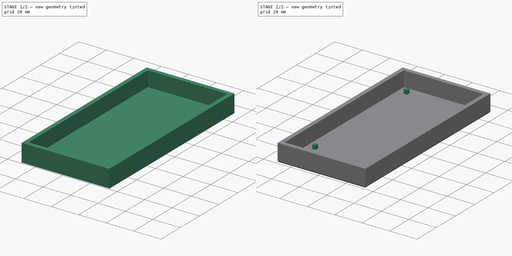
[diagram: build sequence overview — one tinted view per stage of 2, left to right]
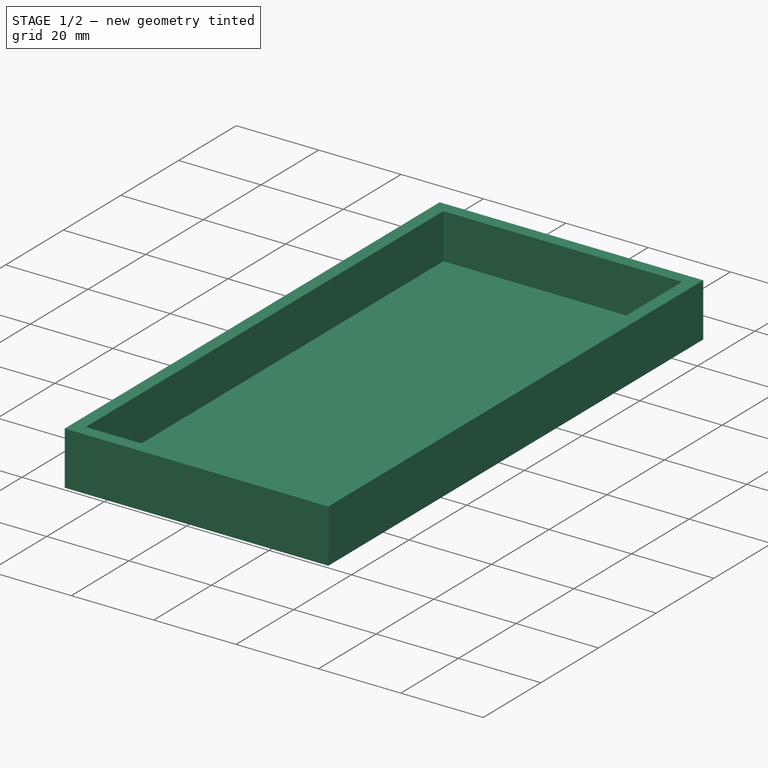
[diagram: stage 1 of 2 — iso view after this stage's code; geometry added in this stage tinted green]
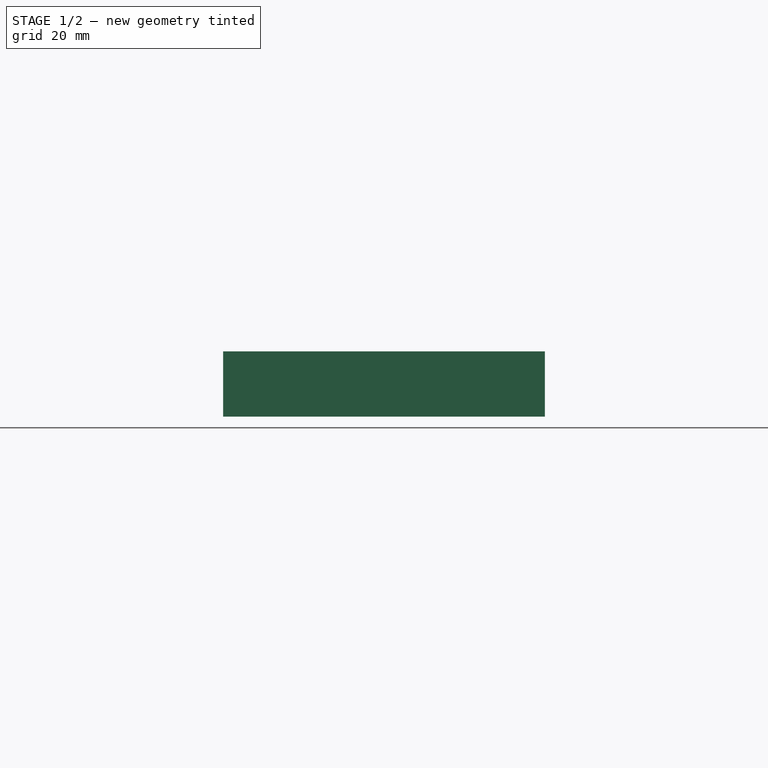
[diagram: stage 1 of 2 — front view after this stage's code; geometry added in this stage tinted green]
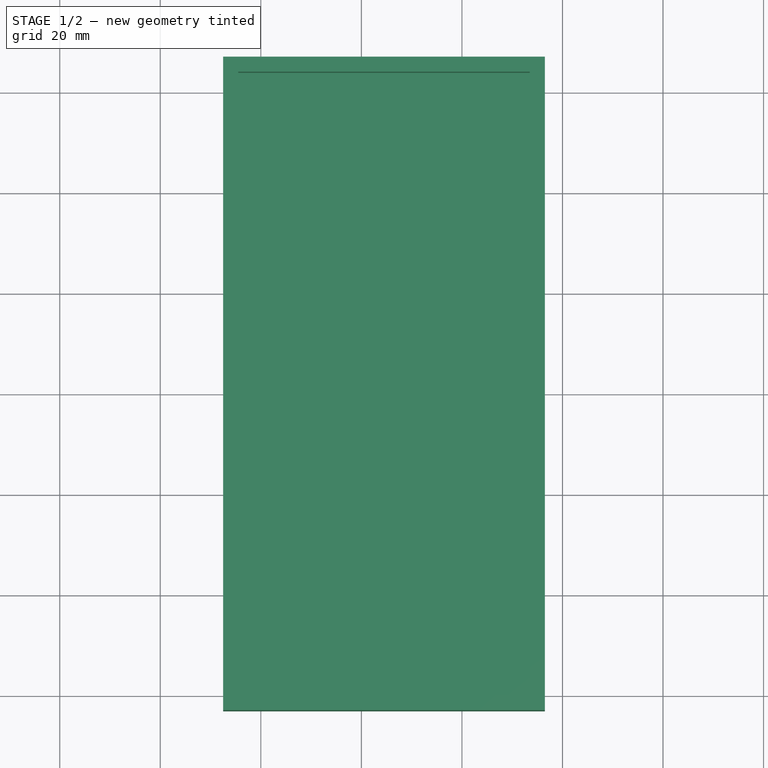
[diagram: stage 1 of 2 — top view after this stage's code; geometry added in this stage tinted green]
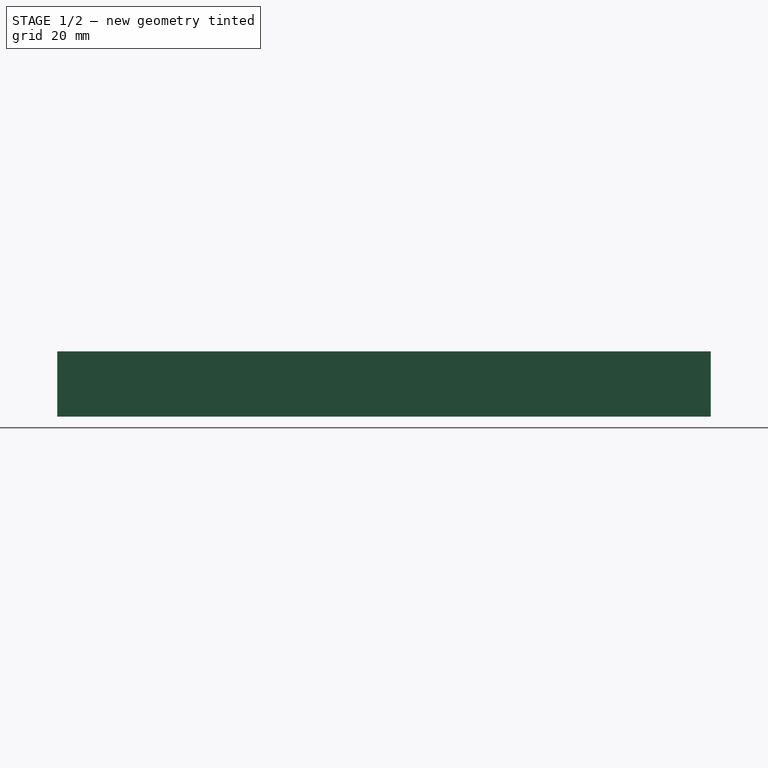
[diagram: stage 1 of 2 — right view after this stage's code; geometry added in this stage tinted green]
FCSTD DOCUMENT  (FreeCAD 0.16R6707 (Git))
Label: rq_optskin01_mold_b
License: All rights reserved
LicenseURL: http://en.wikipedia.org/wiki/All_rights_reserved
objects: Sketcher::SketchObject×4, PartDesign::Pad×2, PartDesign::Pocket×1, Part::Fillet×1
note: 11 computed .brp shape members not serialized (recipe doc carries the construction recipe); baked Part::Feature solids carry a one-line shape summary decoded from their .brp

FEATURE [Sketcher::SketchObject] Sketch001
  sketch-geometry (8):
    g0: LineSegment StartX=-21.5 StartY=81 StartZ=0 EndX=30.5 EndY=81 EndZ=0
    g1: LineSegment StartX=30.5 StartY=81 StartZ=0 EndX=30.5 EndY=-21 EndZ=0
    g2: LineSegment StartX=30.5 StartY=-21 StartZ=0 EndX=-21.5 EndY=-21 EndZ=0
    g3: LineSegment StartX=-21.5 StartY=-21 StartZ=0 EndX=-21.5 EndY=81 EndZ=0
    g4: LineSegment StartX=-18.5 StartY=12 StartZ=0 EndX=27.5 EndY=12 EndZ=0
    g5: LineSegment StartX=27.5 StartY=12 StartZ=0 EndX=27.5 EndY=56 EndZ=0
    g6: LineSegment StartX=27.5 StartY=56 StartZ=0 EndX=-18.5 EndY=56 EndZ=0
    g7: LineSegment StartX=-18.5 StartY=56 StartZ=0 EndX=-18.5 EndY=12 EndZ=0
  constraints (24):
    c: Coincident(g0,g1)
    c: Coincident(g1,g2)
    c: Coincident(g2,g3)
    c: Coincident(g3,g0)
    c: Horizontal(g0)
    c: Horizontal(g2)
    c: Vertical(g1)
    c: Vertical(g3)
    c: DistanceX(g0,g0) = 52
    c: DistanceX(g2,g-1) = 21.5
    c: DistanceY(g2,g-1) = 21
    c: Coincident(g4,g5)
    c: Coincident(g5,g6)
    c: Coincident(g6,g7)
    c: Coincident(g7,g4)
    c: Horizontal(g4)
    c: Horizontal(g6)
    c: Vertical(g5)
    c: Vertical(g7)
    c: DistanceX(g2,g4) = 3
    c: DistanceX(g4,g1) = 3
    c: DistanceY(g-1,g4) = 12
    c: DistanceY(g4,g5) = 44
    c: DistanceY(g6,g0) = 25
FEATURE [Sketcher::SketchObject] Sketch
  expr: Constraints[11] = 27 + 16
  sketch-geometry (4):
    g0: LineSegment StartX=-27.5 StartY=87 StartZ=0 EndX=36.5 EndY=87 EndZ=0
    g1: LineSegment StartX=36.5 StartY=87 StartZ=0 EndX=36.5 EndY=-43 EndZ=0
    g2: LineSegment StartX=36.5 StartY=-43 StartZ=0 EndX=-27.5 EndY=-43 EndZ=0
    g3: LineSegment StartX=-27.5 StartY=-43 StartZ=0 EndX=-27.5 EndY=87 EndZ=0
  constraints (12):
    c: Coincident(g0,g1)
    c: Coincident(g1,g2)
    c: Coincident(g2,g3)
    c: Coincident(g3,g0)
    c: Horizontal(g0)
    c: Horizontal(g2)
    c: Vertical(g1)
    c: Vertical(g3)
    c: DistanceX(g0,g-1) = 27.5
    c: DistanceX(g0,g0) = 64
    c: DistanceY(g-1,g0) = 87
    c: DistanceY(g2,g-1) = 43
FEATURE [PartDesign::Pad] Pad
  Length = 13
  Length2 = 100
  Sketch = -> Sketch
  Type = 0
FEATURE [Sketcher::SketchObject] Sketch002
  ExternalGeometry = -> [Pad]
  Placement = pos=(0,0,13) rot=(0,0,1;0rad)
  Support = -> Pad [Face6]
  sketch-geometry (4):
    g0: LineSegment StartX=-24.5 StartY=84 StartZ=0 EndX=33.5 EndY=84 EndZ=0
    g1: LineSegment StartX=33.5 StartY=84 StartZ=0 EndX=33.5 EndY=-40 EndZ=0
    g2: LineSegment StartX=33.5 StartY=-40 StartZ=0 EndX=-24.5 EndY=-40 EndZ=0
    g3: LineSegment StartX=-24.5 StartY=-40 StartZ=0 EndX=-24.5 EndY=84 EndZ=0
  constraints (12):
    c: Coincident(g0,g1)
    c: Coincident(g1,g2)
    c: Coincident(g2,g3)
    c: Coincident(g3,g0)
    c: Horizontal(g0)
    c: Horizontal(g2)
    c: Vertical(g1)
    c: Vertical(g3)
    c: DistanceX(g-3,g0) = 3
    c: DistanceY(g0,g-3) = 3
    c: DistanceX(g1,g-4) = 3
    c: DistanceY(g-4,g1) = 3
FEATURE [PartDesign::Pocket] Pocket
  Length = 11
  Sketch = -> Sketch002
  Type = 0
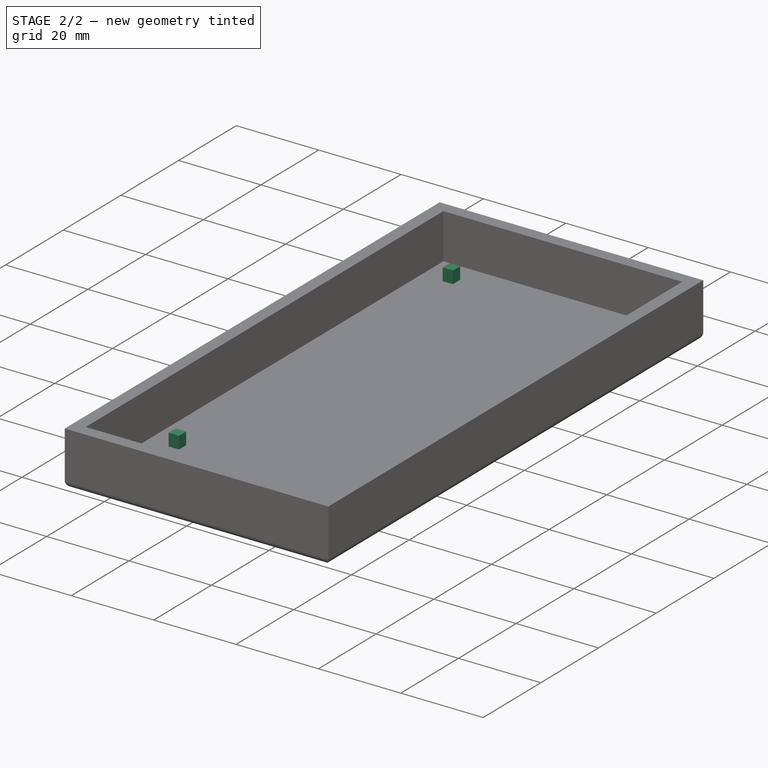
[diagram: stage 2 of 2 — iso view after this stage's code; geometry added in this stage tinted green]
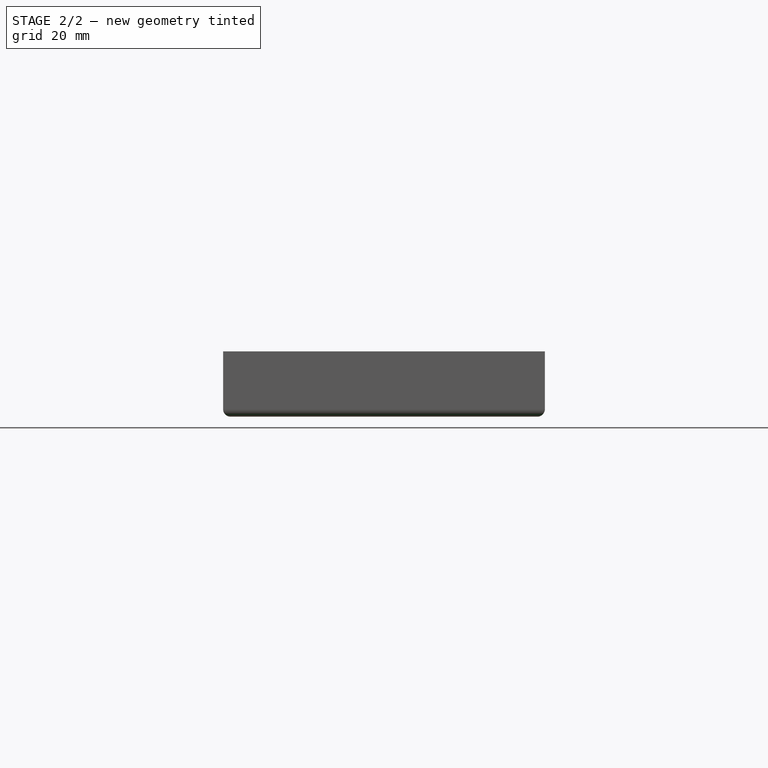
[diagram: stage 2 of 2 — front view after this stage's code; geometry added in this stage tinted green]
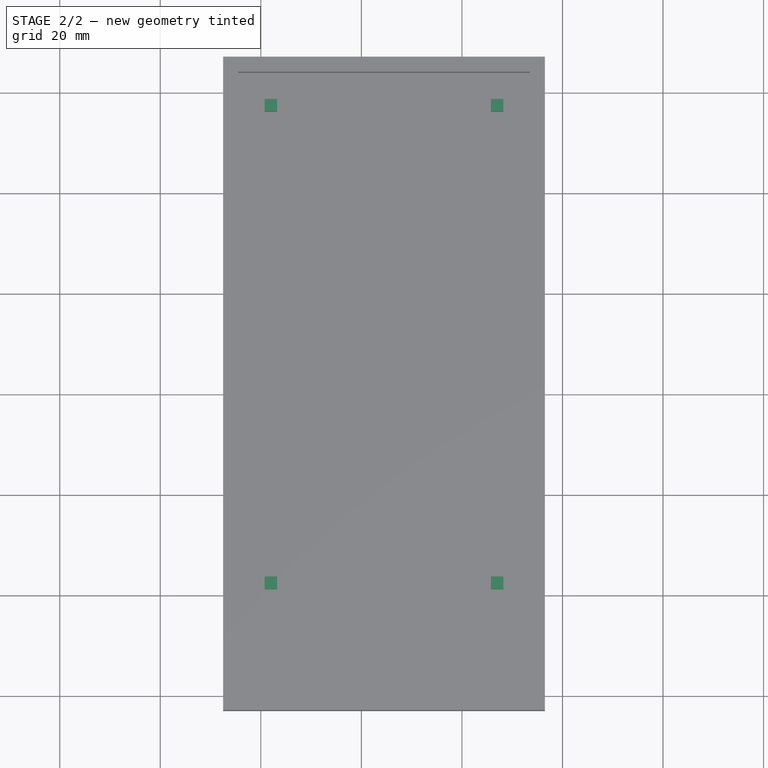
[diagram: stage 2 of 2 — top view after this stage's code; geometry added in this stage tinted green]
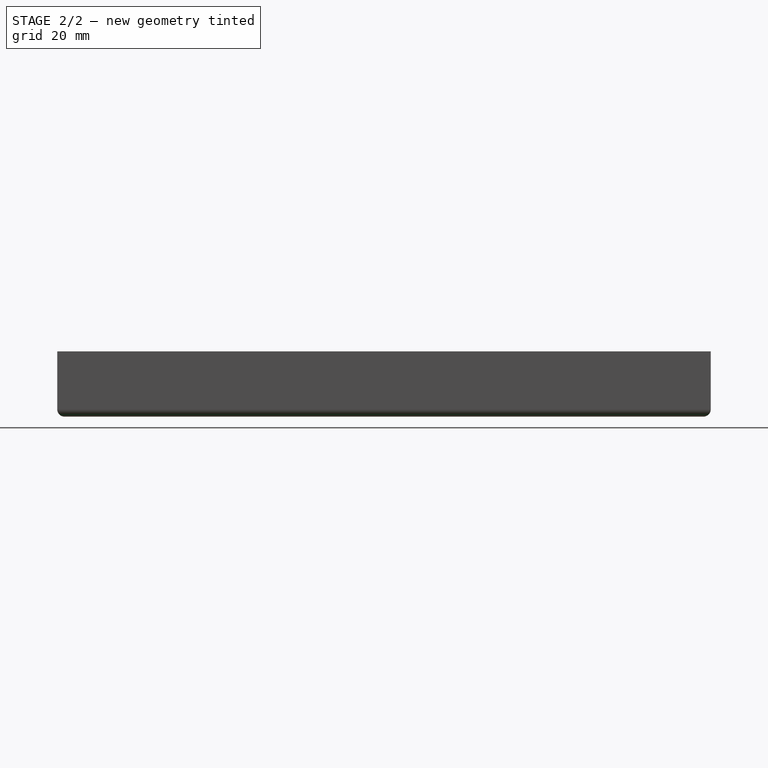
[diagram: stage 2 of 2 — right view after this stage's code; geometry added in this stage tinted green]
FEATURE [Sketcher::SketchObject] Sketch007
  ExternalGeometry = -> [Pocket]
  Placement = pos=(0,0,2) rot=(0,0,1;0rad)
  Support = -> Pocket [Face11]
  sketch-geometry (16):
    g0: LineSegment StartX=-19.25 StartY=78.75 StartZ=0 EndX=-16.75 EndY=78.75 EndZ=0
    g1: LineSegment StartX=-16.75 StartY=78.75 StartZ=0 EndX=-16.75 EndY=76.25 EndZ=0
    g2: LineSegment StartX=-16.75 StartY=76.25 StartZ=0 EndX=-19.25 EndY=76.25 EndZ=0
    g3: LineSegment StartX=-19.25 StartY=76.25 StartZ=0 EndX=-19.25 EndY=78.75 EndZ=0
    g4: LineSegment StartX=25.75 StartY=78.75 StartZ=0 EndX=28.25 EndY=78.75 EndZ=0
    g5: LineSegment StartX=28.25 StartY=78.75 StartZ=0 EndX=28.25 EndY=76.25 EndZ=0
    g6: LineSegment StartX=28.25 StartY=76.25 StartZ=0 EndX=25.75 EndY=76.25 EndZ=0
    g7: LineSegment StartX=25.75 StartY=76.25 StartZ=0 EndX=25.75 EndY=78.75 EndZ=0
    g8: LineSegment StartX=-19.25 StartY=-16.25 StartZ=0 EndX=-16.75 EndY=-16.25 EndZ=0
    g9: LineSegment StartX=-16.75 StartY=-16.25 StartZ=0 EndX=-16.75 EndY=-18.75 EndZ=0
    g10: LineSegment StartX=-16.75 StartY=-18.75 StartZ=0 EndX=-19.25 EndY=-18.75 EndZ=0
    g11: LineSegment StartX=-19.25 StartY=-18.75 StartZ=0 EndX=-19.25 EndY=-16.25 EndZ=0
    g12: LineSegment StartX=25.75 StartY=-16.25 StartZ=0 EndX=28.25 EndY=-16.25 EndZ=0
    g13: LineSegment StartX=28.25 StartY=-16.25 StartZ=0 EndX=28.25 EndY=-18.75 EndZ=0
    g14: LineSegment StartX=28.25 StartY=-18.75 StartZ=0 EndX=25.75 EndY=-18.75 EndZ=0
    g15: LineSegment StartX=25.75 StartY=-18.75 StartZ=0 EndX=25.75 EndY=-16.25 EndZ=0
  constraints (48):
    c: Coincident(g0,g1)
    c: Coincident(g1,g2)
    c: Coincident(g2,g3)
    c: Coincident(g3,g0)
    c: Horizontal(g0)
    c: Horizontal(g2)
    c: Vertical(g1)
    c: Vertical(g3)
    c: Coincident(g4,g5)
    c: Coincident(g5,g6)
    c: Coincident(g6,g7)
    c: Coincident(g7,g4)
    c: Horizontal(g4)
    c: Horizontal(g6)
    c: Vertical(g5)
    c: Vertical(g7)
    c: Coincident(g8,g9)
    c: Coincident(g9,g10)
    c: Coincident(g10,g11)
    c: Coincident(g11,g8)
    c: Horizontal(g8)
    c: Horizontal(g10)
    c: Vertical(g9)
    c: Vertical(g11)
    c: Coincident(g12,g13)
    c: Coincident(g13,g14)
    c: Coincident(g14,g15)
    c: Coincident(g15,g12)
    c: Horizontal(g12)
    c: Horizontal(g14)
    c: Vertical(g13)
    c: Vertical(g15)
    c: DistanceX(g0,g0) = 2.5
    c: DistanceY(g3,g3) = 2.5
    c: DistanceY(g7,g7) = 2.5
    c: DistanceX(g6,g6) = 2.5
    c: DistanceY(g11,g11) = 2.5
    c: DistanceX(g10,g10) = 2.5
    c: DistanceX(g14,g14) = 2.5
    c: DistanceY(g13,g13) = 2.5
    c: DistanceY(g0,g-3) = 5.25
    c: DistanceX(g-3,g0) = 5.25
    c: DistanceX(g4,g-4) = 5.25
    c: DistanceY(g4,g-4) = 5.25
    c: DistanceX(g8,g-1) = 16.75
    c: DistanceY(g8,g-1) = 16.25
    c: DistanceX(g-1,g12) = 25.75
    c: DistanceY(g12,g-1) = 16.25
FEATURE [PartDesign::Pad] Pad001
  Length = 3
  Length2 = 100
  Sketch = -> Sketch007
  Type = 0
FEATURE [Part::Fillet] Fillet
  Base = -> Pad001
  Edges = 4 edges r=1.5: [Edge3,Edge6,Edge9,Edge11]
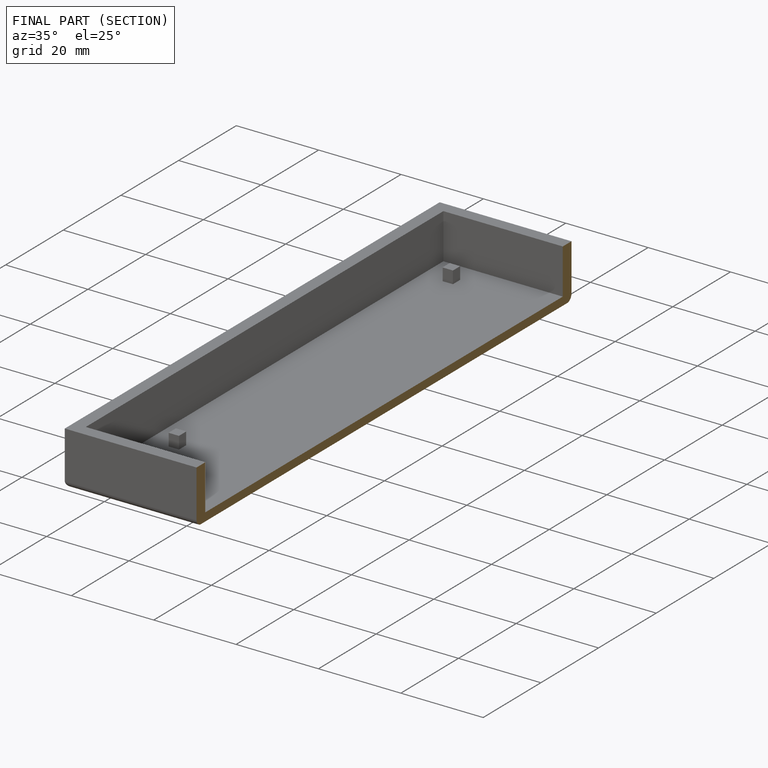
[diagram: finished part — half-section view (interior)]
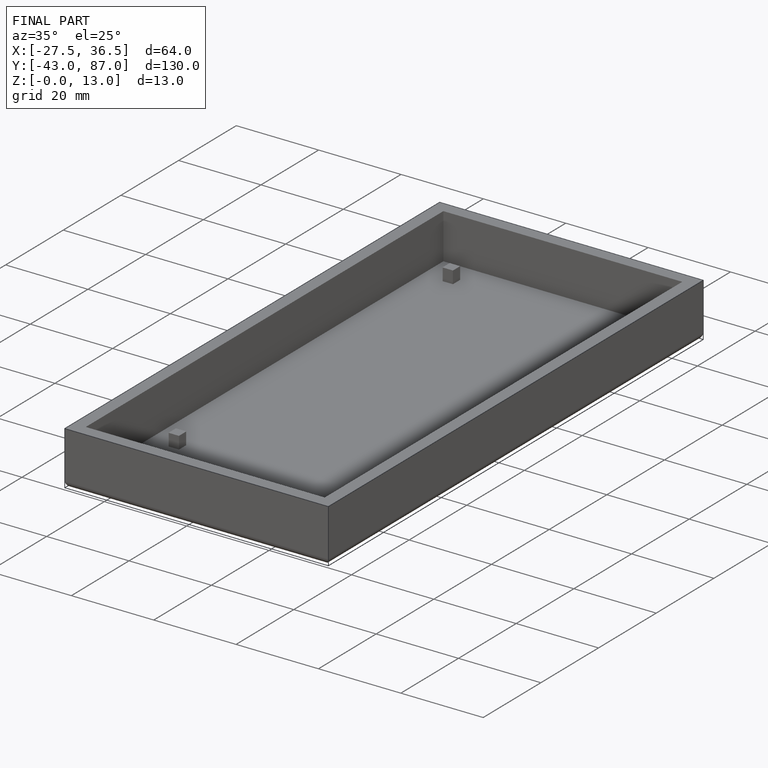
[diagram: finished part — iso view with bounding-box wireframe]
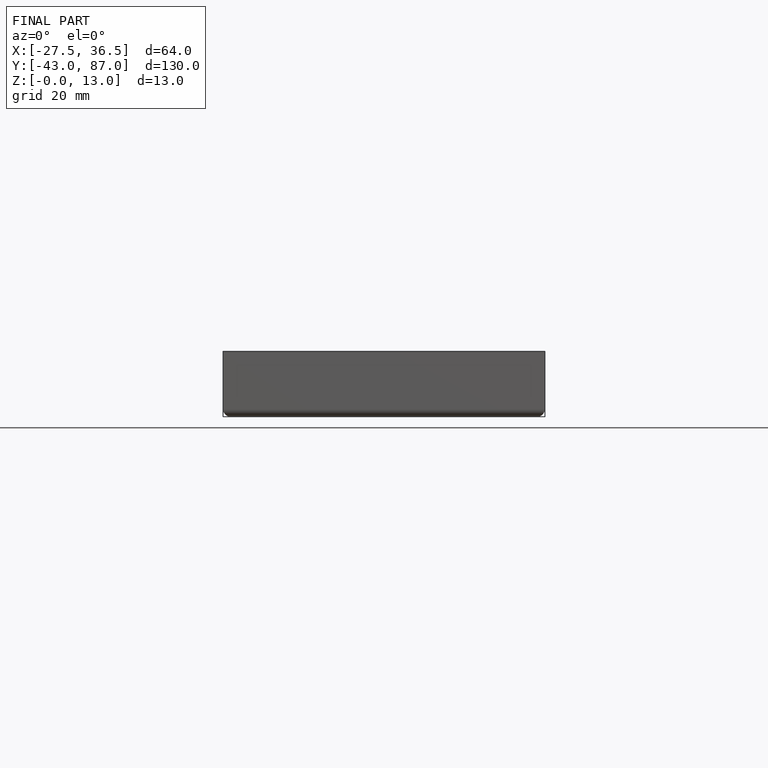
[diagram: finished part — front view with bounding-box wireframe]
